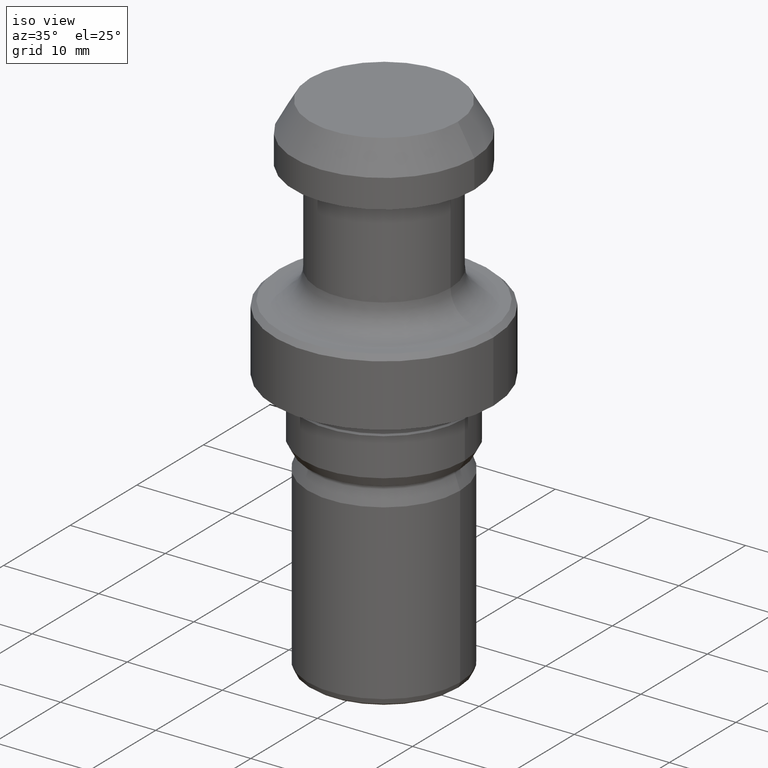
[diagram: clean part render]
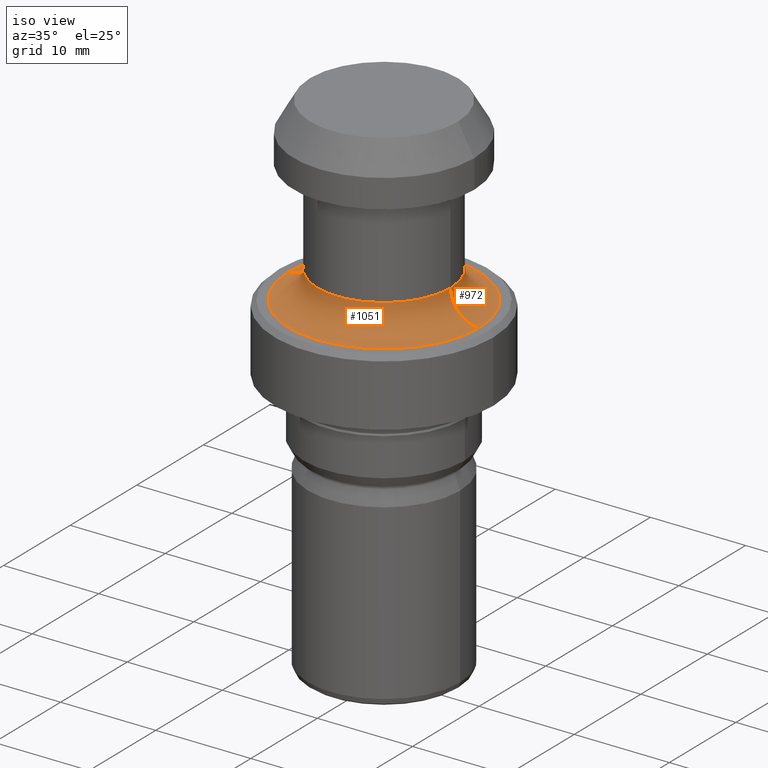
[diagram: same view with one multi-face feature highlighted, each face labeled with its STEP entity id]
A machine part, iso view. The highlighted faces form ONE feature: a constant-radius fillet chain: 2 tangent blend faces with common blend radius 3 mm. The faces share edges in the B-rep.
Their STEP definitions:
[1] entity #972 (Torus):
#7 = AXIS2_PLACEMENT_3D ( 'NONE', #48, #509, #138 ) ;
#25 = DIRECTION ( 'NONE',  ( 0.0000000000000000000, 0.0000000000000000000, -1.000000000000000000 ) ) ;
#34 = VERTEX_POINT ( 'NONE', #369 ) ;
#48 = CARTESIAN_POINT ( 'NONE',  ( 0.0000000000000000000, 0.0000000000000000000, -16.00000000000000400 ) ) ;
#58 = CARTESIAN_POINT ( 'NONE',  ( -6.999999999999998200, 1.040949779275249900E-015, -16.00000000000000400 ) ) ;
#76 = AXIS2_PLACEMENT_3D ( 'NONE', #851, #328, #950 ) ;
#78 = VERTEX_POINT ( 'NONE', #719 ) ;
#132 = ORIENTED_EDGE ( 'NONE', *, *, #741, .F. ) ;
#138 = DIRECTION ( 'NONE',  ( 1.000000000000000000, 0.0000000000000000000, 0.0000000000000000000 ) ) ;
#154 = AXIS2_PLACEMENT_3D ( 'NONE', #625, #905, #293 ) ;
#164 = ORIENTED_EDGE ( 'NONE', *, *, #929, .T. ) ;
#185 = ORIENTED_EDGE ( 'NONE', *, *, #855, .F. ) ;
#205 = FACE_OUTER_BOUND ( 'NONE', #838, .T. ) ;
#221 = CARTESIAN_POINT ( 'NONE',  ( 0.0000000000000000000, 0.0000000000000000000, -16.00000000000000400 ) ) ;
#246 = AXIS2_PLACEMENT_3D ( 'NONE', #221, #360, #888 ) ;
#275 = CIRCLE ( 'NONE', #76, 10.00000000000000000 ) ;
#278 = ORIENTED_EDGE ( 'NONE', *, *, #516, .T. ) ;
#293 = DIRECTION ( 'NONE',  ( -1.000000000000000000, 1.224646799147352700E-016, 0.0000000000000000000 ) ) ;
#320 = CARTESIAN_POINT ( 'NONE',  ( 10.00000000000000000, 0.0000000000000000000, -16.00000000000000400 ) ) ;
#324 = VERTEX_POINT ( 'NONE', #58 ) ;
#328 = DIRECTION ( 'NONE',  ( -0.0000000000000000000, -0.0000000000000000000, 1.000000000000000000 ) ) ;
#360 = DIRECTION ( 'NONE',  ( -0.0000000000000000000, -0.0000000000000000000, 1.000000000000000000 ) ) ;
#369 = CARTESIAN_POINT ( 'NONE',  ( 10.00000000000000000, 0.0000000000000000000, -19.00000000000000400 ) ) ;
#449 = AXIS2_PLACEMENT_3D ( 'NONE', #320, #1023, #25 ) ;
#509 = DIRECTION ( 'NONE',  ( -0.0000000000000000000, -0.0000000000000000000, 1.000000000000000000 ) ) ;
#516 = EDGE_CURVE ( 'NONE', #824, #34, #756, .T. ) ;
#625 = CARTESIAN_POINT ( 'NONE',  ( -10.00000000000000000, 1.224646799147353300E-015, -16.00000000000000400 ) ) ;
#719 = CARTESIAN_POINT ( 'NONE',  ( -10.00000000000000000, 1.224646799147353300E-015, -19.00000000000000400 ) ) ;
#741 = EDGE_CURVE ( 'NONE', #324, #78, #1025, .T. ) ;
#756 = CIRCLE ( 'NONE', #449, 2.999999999999999100 ) ;
#824 = VERTEX_POINT ( 'NONE', #945 ) ;
#838 = EDGE_LOOP ( 'NONE', ( #132, #185, #278, #164 ) ) ;
#851 = CARTESIAN_POINT ( 'NONE',  ( 0.0000000000000000000, 0.0000000000000000000, -19.00000000000000400 ) ) ;
#855 = EDGE_CURVE ( 'NONE', #824, #324, #882, .T. ) ;
#882 = CIRCLE ( 'NONE', #246, 6.999999999999998200 ) ;
#888 = DIRECTION ( 'NONE',  ( 1.000000000000000000, 0.0000000000000000000, 0.0000000000000000000 ) ) ;
#905 = DIRECTION ( 'NONE',  ( 1.224646799147353200E-016, 1.000000000000000000, 0.0000000000000000000 ) ) ;
#926 = TOROIDAL_SURFACE ( 'NONE', #7, 10.00000000000000000, 3.000000000000000400 ) ;
#929 = EDGE_CURVE ( 'NONE', #34, #78, #275, .T. ) ;
#945 = CARTESIAN_POINT ( 'NONE',  ( 6.999999999999998200, 0.0000000000000000000, -16.00000000000000400 ) ) ;
#950 = DIRECTION ( 'NONE',  ( 1.000000000000000000, 0.0000000000000000000, 0.0000000000000000000 ) ) ;
#972 = ADVANCED_FACE ( 'NONE', ( #205 ), #926, .F. ) ;
#1023 = DIRECTION ( 'NONE',  ( 0.0000000000000000000, -1.000000000000000000, 0.0000000000000000000 ) ) ;
#1025 = CIRCLE ( 'NONE', #154, 3.000000000000000900 ) ;
[2] entity #1051 (Torus):
#25 = DIRECTION ( 'NONE',  ( 0.0000000000000000000, 0.0000000000000000000, -1.000000000000000000 ) ) ;
#29 = DIRECTION ( 'NONE',  ( -0.0000000000000000000, -0.0000000000000000000, 1.000000000000000000 ) ) ;
#34 = VERTEX_POINT ( 'NONE', #369 ) ;
#58 = CARTESIAN_POINT ( 'NONE',  ( -6.999999999999998200, 1.040949779275249900E-015, -16.00000000000000400 ) ) ;
#78 = VERTEX_POINT ( 'NONE', #719 ) ;
#131 = DIRECTION ( 'NONE',  ( -0.0000000000000000000, -0.0000000000000000000, 1.000000000000000000 ) ) ;
#154 = AXIS2_PLACEMENT_3D ( 'NONE', #625, #905, #293 ) ;
#160 = AXIS2_PLACEMENT_3D ( 'NONE', #552, #401, #709 ) ;
#241 = CARTESIAN_POINT ( 'NONE',  ( 0.0000000000000000000, 0.0000000000000000000, -16.00000000000000400 ) ) ;
#293 = DIRECTION ( 'NONE',  ( -1.000000000000000000, 1.224646799147352700E-016, 0.0000000000000000000 ) ) ;
#306 = ORIENTED_EDGE ( 'NONE', *, *, #794, .F. ) ;
#318 = CARTESIAN_POINT ( 'NONE',  ( 0.0000000000000000000, 0.0000000000000000000, -16.00000000000000400 ) ) ;
#320 = CARTESIAN_POINT ( 'NONE',  ( 10.00000000000000000, 0.0000000000000000000, -16.00000000000000400 ) ) ;
#324 = VERTEX_POINT ( 'NONE', #58 ) ;
#356 = AXIS2_PLACEMENT_3D ( 'NONE', #318, #29, #575 ) ;
#369 = CARTESIAN_POINT ( 'NONE',  ( 10.00000000000000000, 0.0000000000000000000, -19.00000000000000400 ) ) ;
#401 = DIRECTION ( 'NONE',  ( -0.0000000000000000000, -0.0000000000000000000, 1.000000000000000000 ) ) ;
#412 = TOROIDAL_SURFACE ( 'NONE', #1151, 10.00000000000000000, 3.000000000000000400 ) ;
#449 = AXIS2_PLACEMENT_3D ( 'NONE', #320, #1023, #25 ) ;
#459 = ORIENTED_EDGE ( 'NONE', *, *, #870, .T. ) ;
#504 = DIRECTION ( 'NONE',  ( 1.000000000000000000, 0.0000000000000000000, 0.0000000000000000000 ) ) ;
#516 = EDGE_CURVE ( 'NONE', #824, #34, #756, .T. ) ;
#540 = ORIENTED_EDGE ( 'NONE', *, *, #741, .T. ) ;
#552 = CARTESIAN_POINT ( 'NONE',  ( 0.0000000000000000000, 0.0000000000000000000, -19.00000000000000400 ) ) ;
#555 = CIRCLE ( 'NONE', #160, 10.00000000000000000 ) ;
#575 = DIRECTION ( 'NONE',  ( 1.000000000000000000, 0.0000000000000000000, 0.0000000000000000000 ) ) ;
#592 = EDGE_LOOP ( 'NONE', ( #306, #540, #459, #988 ) ) ;
#625 = CARTESIAN_POINT ( 'NONE',  ( -10.00000000000000000, 1.224646799147353300E-015, -16.00000000000000400 ) ) ;
#709 = DIRECTION ( 'NONE',  ( 1.000000000000000000, 0.0000000000000000000, 0.0000000000000000000 ) ) ;
#719 = CARTESIAN_POINT ( 'NONE',  ( -10.00000000000000000, 1.224646799147353300E-015, -19.00000000000000400 ) ) ;
#741 = EDGE_CURVE ( 'NONE', #324, #78, #1025, .T. ) ;
#756 = CIRCLE ( 'NONE', #449, 2.999999999999999100 ) ;
#794 = EDGE_CURVE ( 'NONE', #324, #824, #907, .T. ) ;
#824 = VERTEX_POINT ( 'NONE', #945 ) ;
#870 = EDGE_CURVE ( 'NONE', #78, #34, #555, .T. ) ;
#883 = FACE_OUTER_BOUND ( 'NONE', #592, .T. ) ;
#905 = DIRECTION ( 'NONE',  ( 1.224646799147353200E-016, 1.000000000000000000, 0.0000000000000000000 ) ) ;
#907 = CIRCLE ( 'NONE', #356, 6.999999999999998200 ) ;
#945 = CARTESIAN_POINT ( 'NONE',  ( 6.999999999999998200, 0.0000000000000000000, -16.00000000000000400 ) ) ;
#988 = ORIENTED_EDGE ( 'NONE', *, *, #516, .F. ) ;
#1023 = DIRECTION ( 'NONE',  ( 0.0000000000000000000, -1.000000000000000000, 0.0000000000000000000 ) ) ;
#1025 = CIRCLE ( 'NONE', #154, 3.000000000000000900 ) ;
#1051 = ADVANCED_FACE ( 'NONE', ( #883 ), #412, .F. ) ;
#1151 = AXIS2_PLACEMENT_3D ( 'NONE', #241, #131, #504 ) ;